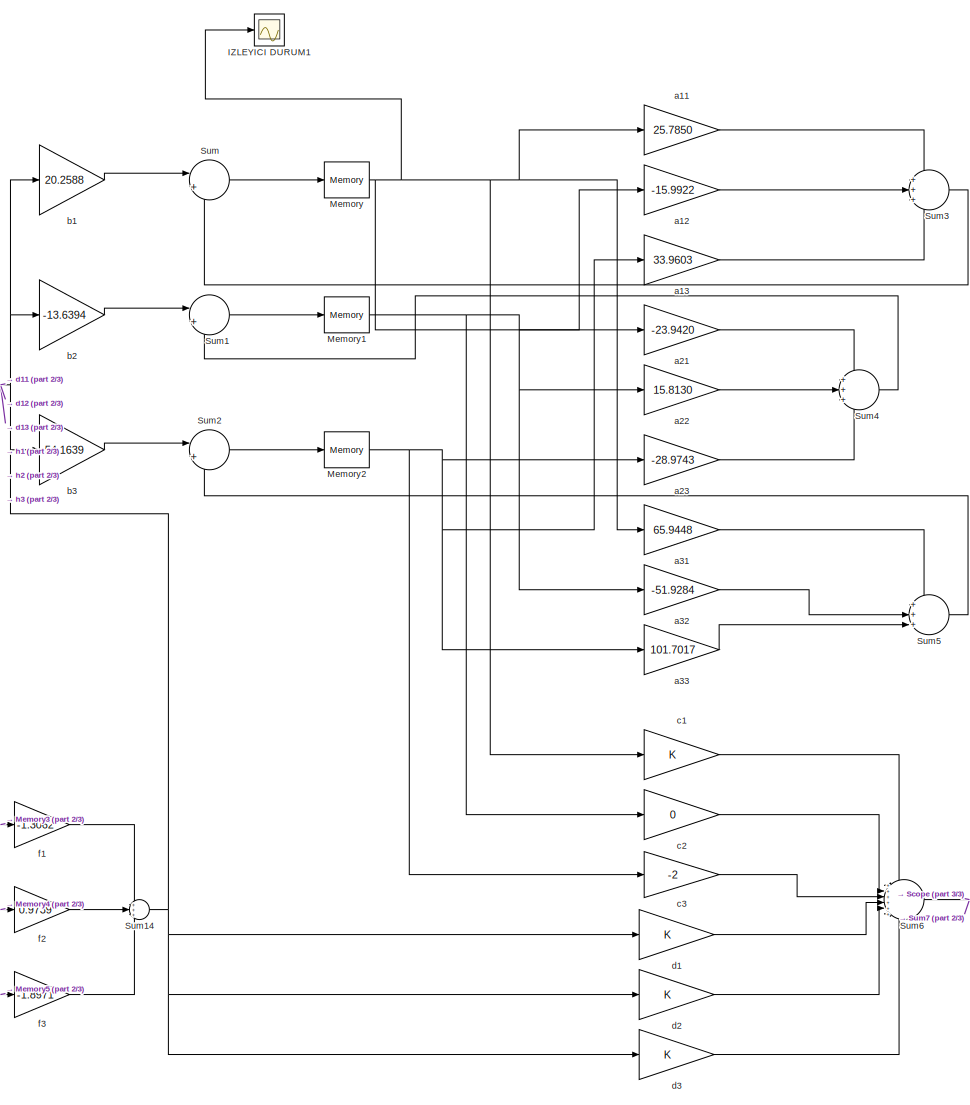
[diagram: root canvas - part 1/3, right side, full height]
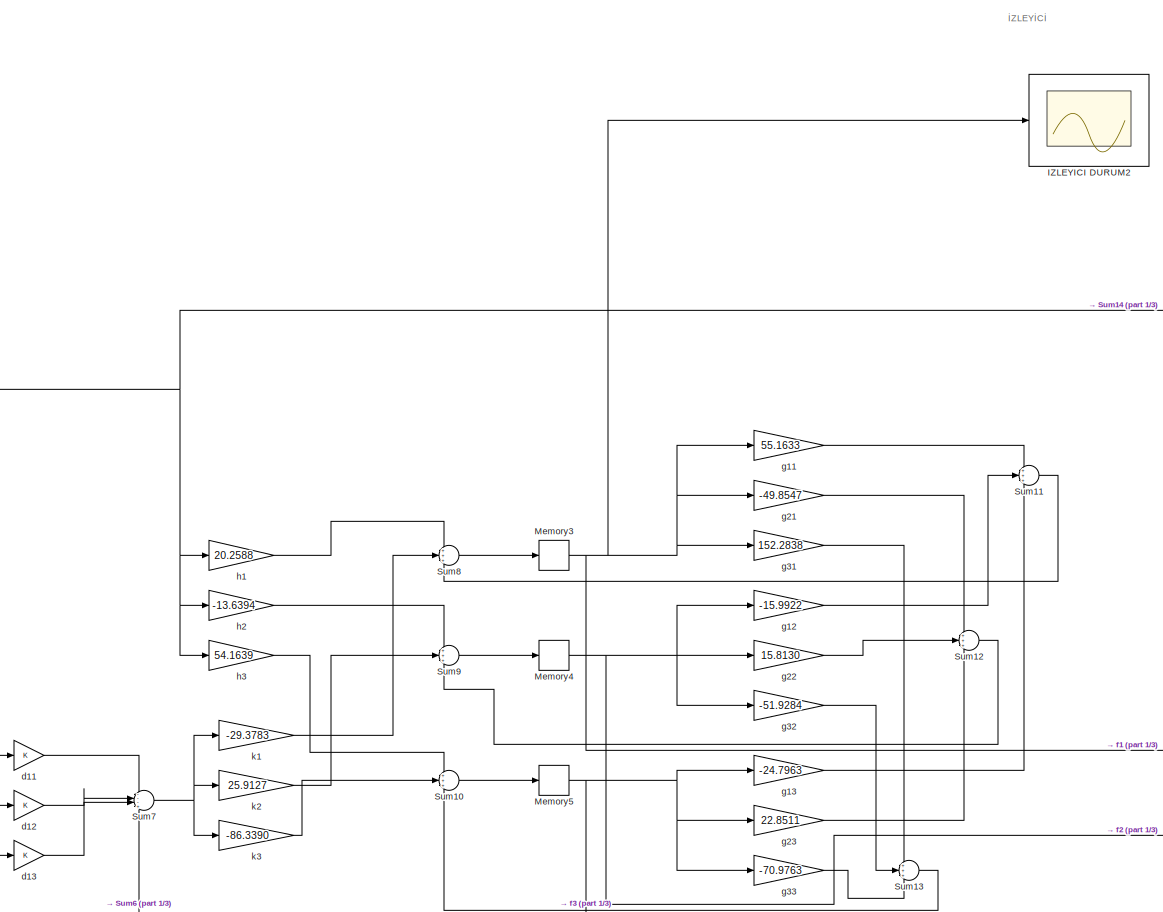
[diagram: root canvas - part 2/3, left side, full height]
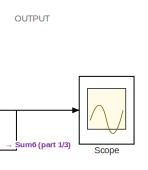
[diagram: root canvas - part 3/3, bottom right region]
MODEL slx_b90e81d92e3b
KIND model
CONFIG AbsTol = auto
CONFIG EnableMultiTasking = off
CONFIG FixedStep = auto
CONFIG MaxStep = auto
CONFIG MinStep = auto
CONFIG RelTol = 1e-3
CONFIG SampleTimeConstraint = Unconstrained
CONFIG SolverName = VariableStepAuto
CONFIG StartTime = 0.0
CONFIG StopTime = 10.0
BLOCK [Scope] IZLEYICI DURUM1
  Floating = off
  NumInputPorts = 1
  Ports = [1]
  ScopeSpecificationString = Simulink.scopes.TimeScopeBlockCfg('CurrentConfiguration', extmgr.ConfigurationSet(extmgr.Configuration('Core','General UI',true),extmgr.Configuration('Core','Source UI',true),extmgr.Configuration('Sources','WiredSimulink',true,'DataLoggingVariableName','ScopeData2'),extmgr.Configuration('Visuals','Time Domain',true,'SerializedDisplays',{struct('MinYLimReal','-9.35423','MaxYLimReal','6.59491','YLab...<+1402ch>
BLOCK [Scope] IZLEYICI DURUM2
  Floating = off
  NumInputPorts = 1
  Ports = [1]
  ScopeSpecificationString = Simulink.scopes.TimeScopeBlockCfg('CurrentConfiguration', extmgr.ConfigurationSet(extmgr.Configuration('Core','General UI',true),extmgr.Configuration('Core','Source UI',true),extmgr.Configuration('Sources','WiredSimulink',true),extmgr.Configuration('Visuals','Time Domain',true,'SerializedDisplays',{struct('MinYLimReal','-9.35423','MaxYLimReal','6.59491','YLabelReal','','MinYLimMag','0.00000','MaxY...<+1364ch>
BLOCK [Memory] Memory
  InitialCondition = 5
BLOCK [Memory] Memory1
  InitialCondition = 5
BLOCK [Memory] Memory2
  InitialCondition = 5
BLOCK [Memory] Memory3
  InitialCondition = 5
BLOCK [Memory] Memory4
  InitialCondition = 5
BLOCK [Memory] Memory5
  InitialCondition = 5
BLOCK [Scope] Scope
  Floating = off
  NumInputPorts = 1
  Ports = [1]
  ScopeSpecificationString = Simulink.scopes.TimeScopeBlockCfg('CurrentConfiguration', extmgr.ConfigurationSet(extmgr.Configuration('Core','General UI',true),extmgr.Configuration('Core','Source UI',true),extmgr.Configuration('Sources','WiredSimulink',true,'DataLoggingVariableName','ScopeData1'),extmgr.Configuration('Visuals','Time Domain',true,'SerializedDisplays',{struct('MinYLimReal','-155.28646','MaxYLimReal','146.60404','...<+1406ch>
BLOCK [Sum] Sum
  Inputs = |++
  Ports = [2, 1]
BLOCK [Sum] Sum1
  Inputs = |++
  Ports = [2, 1]
BLOCK [Sum] Sum10
  Inputs = +++
  Ports = [3, 1]
BLOCK [Sum] Sum11
  Inputs = +++
  Ports = [3, 1]
BLOCK [Sum] Sum12
  Inputs = +++
  Ports = [3, 1]
BLOCK [Sum] Sum13
  Inputs = +++
  Ports = [3, 1]
BLOCK [Sum] Sum14
  Inputs = +++
  Ports = [3, 1]
BLOCK [Sum] Sum2
  Inputs = |++
  Ports = [2, 1]
BLOCK [Sum] Sum3
  Inputs = +++
  Ports = [3, 1]
BLOCK [Sum] Sum4
  Inputs = +++
  Ports = [3, 1]
BLOCK [Sum] Sum5
  Inputs = +++
  Ports = [3, 1]
BLOCK [Sum] Sum6
  Inputs = ++++++
  Ports = [6, 1]
BLOCK [Sum] Sum7
  Inputs = ---+
  Ports = [4, 1]
BLOCK [Sum] Sum8
  Inputs = +++
  Ports = [3, 1]
BLOCK [Sum] Sum9
  Inputs = +++
  Ports = [3, 1]
BLOCK [Gain] a11
  Gain = 25.7850
BLOCK [Gain] a12
  Gain = -15.9922
BLOCK [Gain] a13
  Gain = 33.9603
BLOCK [Gain] a21
  Gain = -23.9420
BLOCK [Gain] a22
  Gain = 15.8130
BLOCK [Gain] a23
  Gain = -28.9743
BLOCK [Gain] a31
  Gain = 65.9448
BLOCK [Gain] a32
  Gain = -51.9284
BLOCK [Gain] a33
  Gain = 101.7017
BLOCK [Gain] b1
  Gain = 20.2588
BLOCK [Gain] b2
  Gain = -13.6394
BLOCK [Gain] b3
  Gain = 54.1639
BLOCK [Gain] c1
BLOCK [Gain] c2
  Gain = 0
BLOCK [Gain] c3
  Gain = -2
BLOCK [Gain] d1
BLOCK [Gain] d11
BLOCK [Gain] d12
BLOCK [Gain] d13
BLOCK [Gain] d2
BLOCK [Gain] d3
BLOCK [Gain] f1
  Gain = -1.3062
  NameLocation = top
BLOCK [Gain] f2
  Gain = 0.9739
  NameLocation = top
BLOCK [Gain] f3
  Gain = -1.8971
  NameLocation = top
BLOCK [Gain] g11
  Gain = 55.1633
BLOCK [Gain] g12
  Gain = -15.9922
BLOCK [Gain] g13
  Gain = -24.7963
BLOCK [Gain] g21
  Gain = -49.8547
BLOCK [Gain] g22
  Gain = 15.8130
BLOCK [Gain] g23
  Gain = 22.8511
BLOCK [Gain] g31
  Gain = 152.2838
BLOCK [Gain] g32
  Gain = -51.9284
BLOCK [Gain] g33
  Gain = -70.9763
BLOCK [Gain] h1
  Gain = 20.2588
BLOCK [Gain] h2
  Gain = -13.6394
BLOCK [Gain] h3
  Gain = 54.1639
BLOCK [Gain] k1
  Gain = -29.3783
BLOCK [Gain] k2
  Gain = 25.9127
BLOCK [Gain] k3
  Gain = -86.3390
ANNOTATION (root): İZLEYİCİ
ANNOTATION (root): OUTPUT
NET Memory1:1 -> a12:1, a22:1, a32:1, c2:1
NET Memory2:1 -> a13:1, a23:1, a33:1, c3:1
NET Memory3:1 -> IZLEYICI DURUM2:1, f1:1, g11:1, g21:1, g31:1
NET Memory4:1 -> f2:1, g12:1, g22:1, g32:1
NET Memory5:1 -> f3:1, g13:1, g23:1, g33:1
NET Memory:1 -> IZLEYICI DURUM1:1, a11:1, a21:1, a31:1, c1:1
LINE Sum10:1 -> Memory5:1
LINE Sum11:1 -> Sum8:3
LINE Sum12:1 -> Sum9:3
LINE Sum13:1 -> Sum10:3
NET Sum14:1 -> b1:1, b2:1, b3:1, d11:1, d12:1, d13:1, d1:1, d2:1, d3:1, h1:1, h2:1, h3:1
LINE Sum1:1 -> Memory1:1
LINE Sum2:1 -> Memory2:1
LINE Sum3:1 -> Sum:2
LINE Sum4:1 -> Sum1:2
LINE Sum5:1 -> Sum2:2
NET Sum6:1 -> Scope:1, Sum7:4
NET Sum7:1 -> k1:1, k2:1, k3:1
LINE Sum8:1 -> Memory3:1
LINE Sum9:1 -> Memory4:1
LINE Sum:1 -> Memory:1
LINE a11:1 -> Sum3:1
LINE a12:1 -> Sum3:2
LINE a13:1 -> Sum3:3
LINE a21:1 -> Sum4:1
LINE a22:1 -> Sum4:2
LINE a23:1 -> Sum4:3
LINE a31:1 -> Sum5:1
LINE a32:1 -> Sum5:2
LINE a33:1 -> Sum5:3
LINE b1:1 -> Sum:1
LINE b2:1 -> Sum1:1
LINE b3:1 -> Sum2:1
LINE c1:1 -> Sum6:1
LINE c2:1 -> Sum6:2
LINE c3:1 -> Sum6:3
LINE d11:1 -> Sum7:1
LINE d12:1 -> Sum7:2
LINE d13:1 -> Sum7:3
LINE d1:1 -> Sum6:4
LINE d2:1 -> Sum6:5
LINE d3:1 -> Sum6:6
LINE f1:1 -> Sum14:1
LINE f2:1 -> Sum14:2
LINE f3:1 -> Sum14:3
LINE g11:1 -> Sum11:1
LINE g12:1 -> Sum11:2
LINE g13:1 -> Sum11:3
LINE g21:1 -> Sum12:1
LINE g22:1 -> Sum12:2
LINE g23:1 -> Sum12:3
LINE g31:1 -> Sum13:1
LINE g32:1 -> Sum13:2
LINE g33:1 -> Sum13:3
LINE h1:1 -> Sum8:1
LINE h2:1 -> Sum9:1
LINE h3:1 -> Sum10:1
LINE k1:1 -> Sum8:2
LINE k2:1 -> Sum9:2
LINE k3:1 -> Sum10:2
note: NET lines group one-source signal fan-out (src -> all destinations, sorted); 1:1 wires keep LINE
